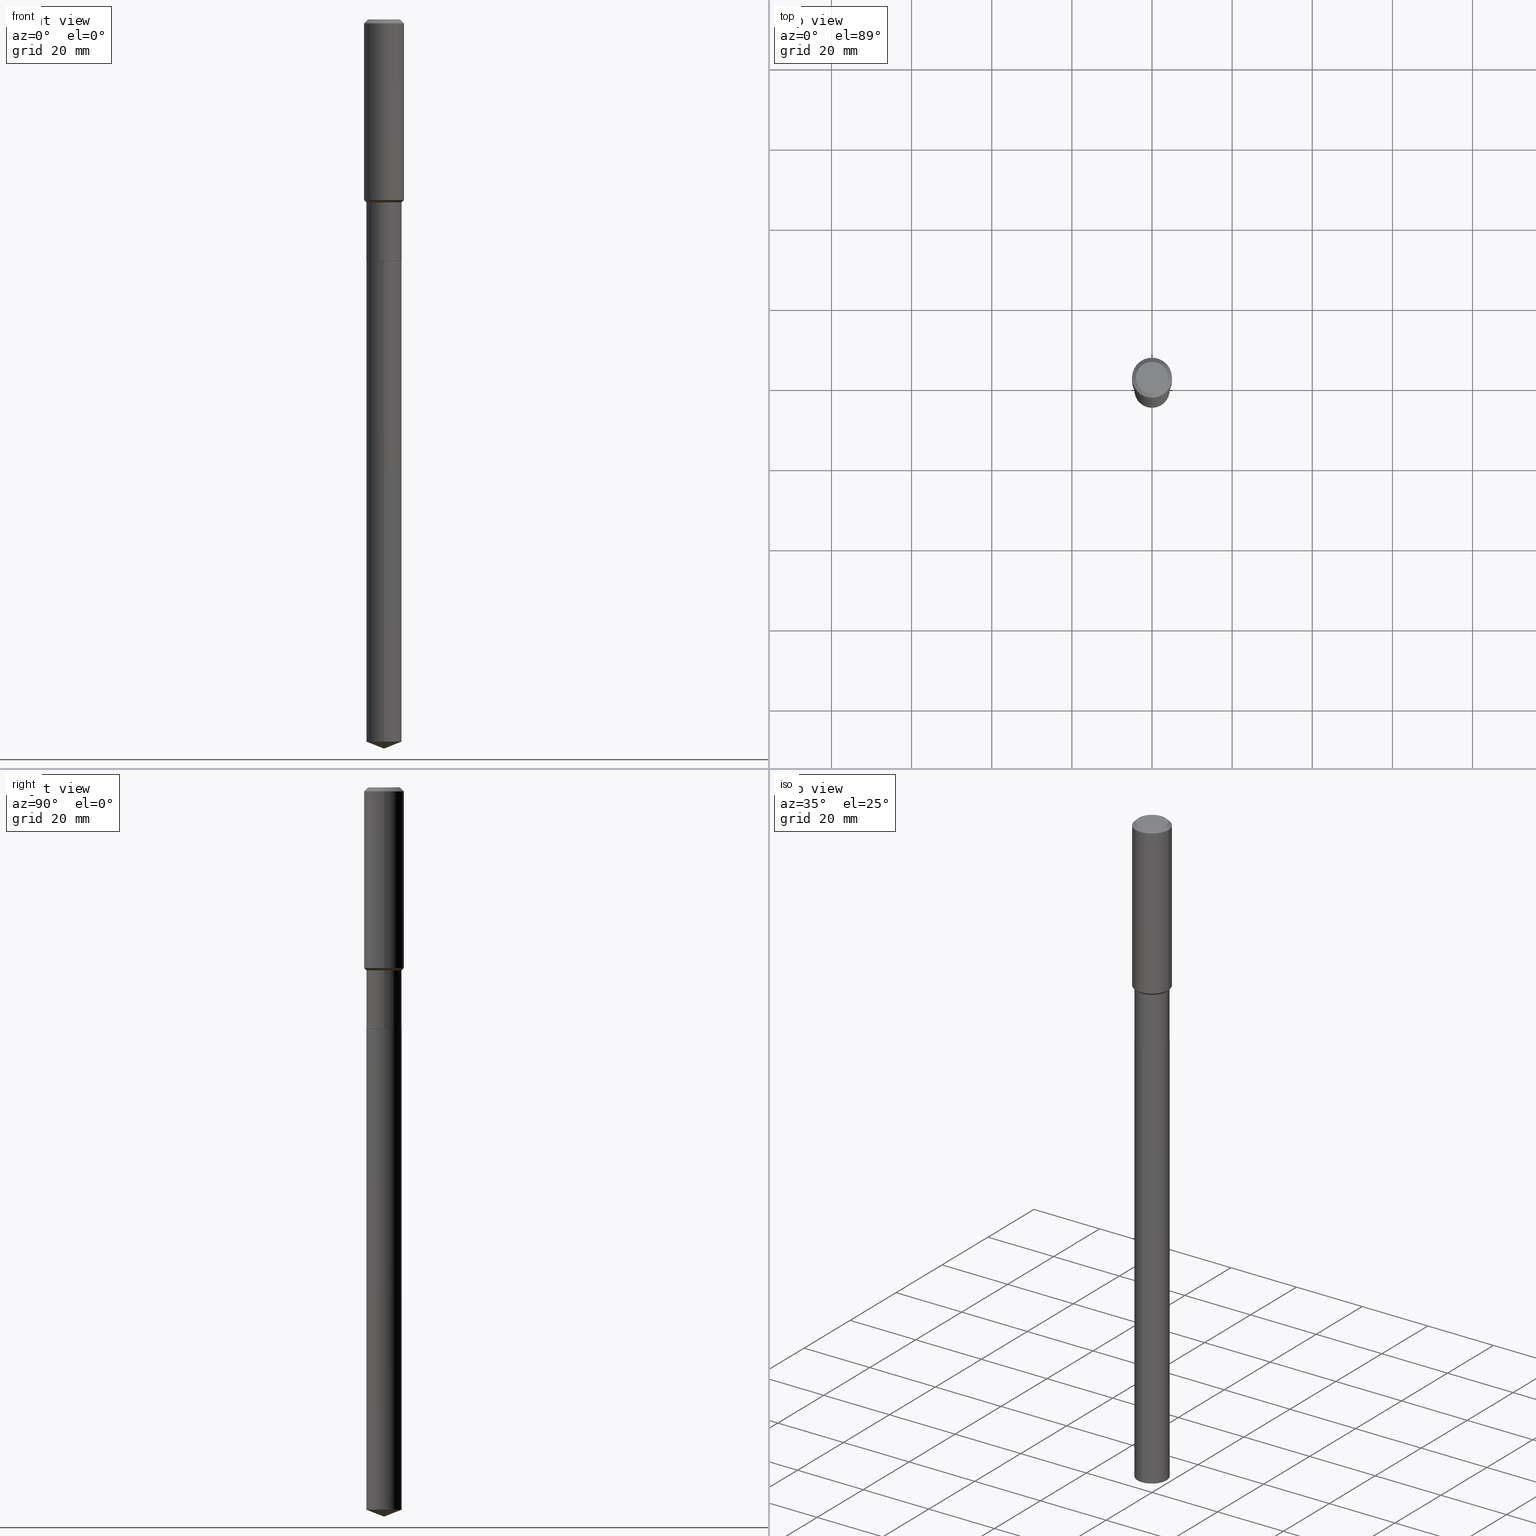
[diagram: canonical four-view strip — front | top / right | iso, engineering-drawing reading convention]
A machine part, canonical four-view strip (front | top / right | iso — engineering-drawing reading convention). The complete STEP part file that produces these views, byte-faithful:
ISO-10303-21;
HEADER;
FILE_DESCRIPTION (( 'STEP AP203' ),
    '1' );
FILE_NAME ('66767.STEP',
    '2024-04-25T05:42:07',
    ( '' ),
    ( '' ),
    'SwSTEP 2.0',
    'SolidWorks 2023',
    '' );
FILE_SCHEMA (( 'CONFIG_CONTROL_DESIGN' ));
ENDSEC;

DATA;
#1 = PERSON_AND_ORGANIZATION_ROLE ( 'design_supplier' ) ;
#2 = PERSON_AND_ORGANIZATION ( #8, #468 ) ;
#3 = AXIS2_PLACEMENT_3D ( 'NONE', #109, #450, #481 ) ;
#4 = EDGE_CURVE ( 'NONE', #108, #359, #438, .T. ) ;
#5 = PERSON_AND_ORGANIZATION ( #8, #468 ) ;
#6 = CARTESIAN_POINT ( 'NONE',  ( -1.209798283909087576E-15, -0.1732500000000082585, -2.369699999999999029 ) ) ;
#7 = DIRECTION ( 'NONE',  ( 0.000000000000000000, 0.000000000000000000, 1.000000000000000000 ) ) ;
#8 = PERSON ( 'UNSPECIFIED', 'UNSPECIFIED', 'UNSPECIFIED', ('UNSPECIFIED'), ('UNSPECIFIED'), ('UNSPECIFIED') ) ;
#9 = ORIENTED_EDGE ( 'NONE', *, *, #451, .F. ) ;
#10 = COORDINATED_UNIVERSAL_TIME_OFFSET ( 5, 0, .BEHIND. ) ;
#11 = EDGE_CURVE ( 'NONE', #359, #108, #33, .T. ) ;
#12 = ORIENTED_EDGE ( 'NONE', *, *, #120, .F. ) ;
#13 = ORIENTED_EDGE ( 'NONE', *, *, #19, .T. ) ;
#14 = DIRECTION ( 'NONE',  ( 1.000000000000000000, -6.982962677686267499E-15, 0.000000000000000000 ) ) ;
#15 = DIRECTION ( 'NONE',  ( -2.445443168198944148E-29, 3.491518053898597077E-15, 1.000000000000000000 ) ) ;
#16 = FACE_OUTER_BOUND ( 'NONE', #393, .T. ) ;
#17 = CONICAL_SURFACE ( 'NONE', #350, 0.1732499999999999318, 0.7853981633974490562 ) ;
#18 = VERTEX_POINT ( 'NONE', #145 ) ;
#19 = EDGE_CURVE ( 'NONE', #487, #446, #98, .T. ) ;
#20 = CARTESIAN_POINT ( 'NONE',  ( 0.000000000000000000, 0.000000000000000000, 0.000000000000000000 ) ) ;
#21 = DIRECTION ( 'NONE',  ( -2.445443168198944148E-29, 3.491518053898597077E-15, 1.000000000000000000 ) ) ;
#22 = ORIENTED_EDGE ( 'NONE', *, *, #236, .F. ) ;
#23 = DIRECTION ( 'NONE',  ( -2.445468806185136597E-29, 3.491481338843145583E-15, 1.000000000000000000 ) ) ;
#24 = ORIENTED_EDGE ( 'NONE', *, *, #199, .T. ) ;
#25 = CARTESIAN_POINT ( 'NONE',  ( 0.000000000000000000, 0.000000000000000000, 0.000000000000000000 ) ) ;
#26 = EDGE_CURVE ( 'NONE', #70, #85, #467, .T. ) ;
#27 = VECTOR ( 'NONE', #253, 39.37007874015748143 ) ;
#28 = ORIENTED_EDGE ( 'NONE', *, *, #141, .T. ) ;
#29 = DIRECTION ( 'NONE',  ( 1.000000000000000000, -6.982962677686261189E-15, 0.000000000000000000 ) ) ;
#30 = CARTESIAN_POINT ( 'NONE',  ( 9.627810689950948900E-31, -1.374596203102555561E-16, -0.03937000000000026589 ) ) ;
#31 = DIRECTION ( 'NONE',  ( -2.445468806185136597E-29, 3.491481338843145583E-15, 1.000000000000000000 ) ) ;
#32 = DIRECTION ( 'NONE',  ( 1.000000000000000000, -6.982962677686261189E-15, 0.000000000000000000 ) ) ;
#33 = CIRCLE ( 'NONE', #272, 0.1968500000000000250 ) ;
#34 = AXIS2_PLACEMENT_3D ( 'NONE', #466, #465, #100 ) ;
#35 = EDGE_CURVE ( 'NONE', #136, #359, #44, .T. ) ;
#36 = CALENDAR_DATE ( 2024, 25, 4 ) ;
#37 = ORIENTED_EDGE ( 'NONE', *, *, #413, .T. ) ;
#38 = DIRECTION ( 'NONE',  ( 6.982962677686265922E-15, 1.000000000000000000, -3.491518053898597472E-15 ) ) ;
#39 = AXIS2_PLACEMENT_3D ( 'NONE', #50, #91, #88 ) ;
#40 = AXIS2_PLACEMENT_3D ( 'NONE', #340, #449, #32 ) ;
#41 = FACE_OUTER_BOUND ( 'NONE', #405, .T. ) ;
#42 = PERSON_AND_ORGANIZATION_ROLE ( 'classification_officer' ) ;
#43 = CARTESIAN_POINT ( 'NONE',  ( 0.1732499999999999596, -1.209798283909145558E-15, 8.447976264066457276E-30 ) ) ;
#44 = LINE ( 'NONE', #83, #258 ) ;
#45 = ORIENTED_EDGE ( 'NONE', *, *, #164, .T. ) ;
#46 = AXIS2_PLACEMENT_3D ( 'NONE', #105, #409, #68 ) ;
#47 = EDGE_CURVE ( 'NONE', #490, #108, #210, .T. ) ;
#48 = AXIS2_PLACEMENT_3D ( 'NONE', #361, #407, #64 ) ;
#49 = CIRCLE ( 'NONE', #358, 0.1732499999999999873 ) ;
#50 = CARTESIAN_POINT ( 'NONE',  ( 5.793804695613824490E-29, -8.272017587987179099E-15, -2.369199999999999751 ) ) ;
#51 = ORIENTED_EDGE ( 'NONE', *, *, #120, .T. ) ;
#52 = DIRECTION ( 'NONE',  ( -2.445443168198944148E-29, 3.491518053898597077E-15, 1.000000000000000000 ) ) ;
#53 = DIRECTION ( 'NONE',  ( 1.000000000000000000, -6.982962677686261189E-15, 0.000000000000000000 ) ) ;
#54 = ORIENTED_EDGE ( 'NONE', *, *, #212, .T. ) ;
#55 = FACE_OUTER_BOUND ( 'NONE', #159, .T. ) ;
#56 = EDGE_CURVE ( 'NONE', #150, #457, #86, .T. ) ;
#57 = FACE_OUTER_BOUND ( 'NONE', #420, .T. ) ;
#58 = ORIENTED_EDGE ( 'NONE', *, *, #463, .F. ) ;
#59 = FACE_OUTER_BOUND ( 'NONE', #354, .T. ) ;
#60 = VECTOR ( 'NONE', #158, 39.37007874015748143 ) ;
#61 = VERTEX_POINT ( 'NONE', #243 ) ;
#62 = DIRECTION ( 'NONE',  ( -2.445468806185136597E-29, 3.491481338843145583E-15, 1.000000000000000000 ) ) ;
#63 = ORIENTED_EDGE ( 'NONE', *, *, #35, .T. ) ;
#64 = DIRECTION ( 'NONE',  ( -6.982962677686266711E-15, -1.000000000000000000, 6.307296955069006705E-15 ) ) ;
#65 = LINE ( 'NONE', #462, #218 ) ;
#66 =( NAMED_UNIT ( * ) PLANE_ANGLE_UNIT ( ) SI_UNIT ( $, .RADIAN. ) );
#67 = CLOSED_SHELL ( 'NONE', ( #377, #156, #249, #287, #229, #417, #269, #182, #422, #456, #127, #224 ) ) ;
#68 = DIRECTION ( 'NONE',  ( 1.000000000000000000, -6.982962677686265922E-15, 0.000000000000000000 ) ) ;
#69 = CARTESIAN_POINT ( 'NONE',  ( 5.795027430016917291E-29, -8.273763328656601391E-15, -2.369699999999999473 ) ) ;
#70 = VERTEX_POINT ( 'NONE', #200 ) ;
#71 = PRODUCT_DEFINITION ( 'UNKNOWN', '', #440, #172 ) ;
#72 = LINE ( 'NONE', #414, #485 ) ;
#73 = AXIS2_PLACEMENT_3D ( 'NONE', #279, #390, #38 ) ;
#74 = CARTESIAN_POINT ( 'NONE',  ( 0.1732499999999999318, -7.487481731149119896E-15, -1.797999999999999821 ) ) ;
#75 = ORIENTED_EDGE ( 'NONE', *, *, #26, .T. ) ;
#76 = ADVANCED_FACE ( 'NONE', ( #203 ), #369, .T. ) ;
#77 = PERSON_AND_ORGANIZATION ( #8, #468 ) ;
#78 = EDGE_LOOP ( 'NONE', ( #294, #171 ) ) ;
#79 = AXIS2_PLACEMENT_3D ( 'NONE', #20, #23, #132 ) ;
#80 = PERSON_AND_ORGANIZATION ( #8, #468 ) ;
#81 = DATE_TIME_ROLE ( 'creation_date' ) ;
#82 = CARTESIAN_POINT ( 'NONE',  ( 0.000000000000000000, 0.000000000000000000, 0.000000000000000000 ) ) ;
#83 = CARTESIAN_POINT ( 'NONE',  ( 0.1968500000000000250, -1.487948651171581601E-15, -0.03937000000000026589 ) ) ;
#84 = CC_DESIGN_PERSON_AND_ORGANIZATION_ASSIGNMENT ( #122, #1, ( #440 ) ) ;
#85 = VERTEX_POINT ( 'NONE', #166 ) ;
#86 = CIRCLE ( 'NONE', #39, 0.1732499999999999873 ) ;
#87 = CARTESIAN_POINT ( 'NONE',  ( 1.752160030014543344E-28, -2.501672685618344629E-14, -7.165000000000000036 ) ) ;
#88 = DIRECTION ( 'NONE',  ( 1.000000000000000000, -6.982962677686265133E-15, 0.000000000000000000 ) ) ;
#89 = EDGE_CURVE ( 'NONE', #362, #108, #333, .T. ) ;
#90 = DIRECTION ( 'NONE',  ( 0.7071067811866199593, -2.468850131083015945E-15, 0.7071067811864750752 ) ) ;
#91 = DIRECTION ( 'NONE',  ( -2.445468806185136597E-29, 3.491481338843145583E-15, 1.000000000000000000 ) ) ;
#92 = ORIENTED_EDGE ( 'NONE', *, *, #371, .F. ) ;
#93 = LINE ( 'NONE', #96, #27 ) ;
#94 = FACE_OUTER_BOUND ( 'NONE', #78, .T. ) ;
#95 = ORIENTED_EDGE ( 'NONE', *, *, #35, .F. ) ;
#96 = CARTESIAN_POINT ( 'NONE',  ( -1.209798283909087576E-15, -0.1732500000000082585, -2.369699999999999029 ) ) ;
#97 = AXIS2_PLACEMENT_3D ( 'NONE', #133, #289, #435 ) ;
#98 = CIRCLE ( 'NONE', #484, 0.1732499999999999318 ) ;
#99 = APPROVAL_PERSON_ORGANIZATION ( #77, #473, #421 ) ;
#100 = DIRECTION ( 'NONE',  ( 1.000000000000000000, -6.982962677686261189E-15, 0.000000000000000000 ) ) ;
#101 = CARTESIAN_POINT ( 'NONE',  ( -0.1732499999999999873, -6.043835227909203138E-15, -2.369199999999999751 ) ) ;
#102 = DIRECTION ( 'NONE',  ( -2.445468806185136597E-29, 3.491481338843145583E-15, 1.000000000000000000 ) ) ;
#103 = CARTESIAN_POINT ( 'NONE',  ( 0.1968500000000002192, -7.569880690745819598E-15, -1.774399999999999533 ) ) ;
#104 = VECTOR ( 'NONE', #303, 39.37007874015748854 ) ;
#105 = CARTESIAN_POINT ( 'NONE',  ( 9.627810689950948900E-31, -1.374596203102555561E-16, -0.03937000000000026589 ) ) ;
#106 = DIRECTION ( 'NONE',  ( 1.000000000000000000, -6.982962677686265922E-15, 0.000000000000000000 ) ) ;
#107 = ADVANCED_FACE ( 'NONE', ( #57 ), #206, .T. ) ;
#108 = VERTEX_POINT ( 'NONE', #471 ) ;
#109 = CARTESIAN_POINT ( 'NONE',  ( 4.396952913520875005E-29, -6.277683447239975324E-15, -1.797999999999999821 ) ) ;
#110 = DIRECTION ( 'NONE',  ( 1.000000000000000000, -6.982962677686267499E-15, 4.876176775795935793E-29 ) ) ;
#111 = CONICAL_SURFACE ( 'NONE', #152, 0.1732499999999999318, 0.7853981633974490562 ) ;
#112 = SHAPE_DEFINITION_REPRESENTATION ( #304, #415 ) ;
#113 = ORIENTED_EDGE ( 'NONE', *, *, #394, .T. ) ;
#114 = CALENDAR_DATE ( 2024, 25, 4 ) ;
#115 = CARTESIAN_POINT ( 'NONE',  ( 0.1732499999999999873, -9.481815871896324459E-15, -2.369199999999999751 ) ) ;
#116 = DIRECTION ( 'NONE',  ( 1.000000000000000000, 0.000000000000000000, 0.000000000000000000 ) ) ;
#117 = AXIS2_PLACEMENT_3D ( 'NONE', #25, #245, #125 ) ;
#118 = DATE_AND_TIME ( #114, #478 ) ;
#119 = LINE ( 'NONE', #213, #252 ) ;
#120 = EDGE_CURVE ( 'NONE', #136, #490, #168, .T. ) ;
#121 = ORIENTED_EDGE ( 'NONE', *, *, #4, .T. ) ;
#122 = PERSON_AND_ORGANIZATION ( #8, #468 ) ;
#123 = DIRECTION ( 'NONE',  ( -2.445468806185136877E-29, 3.491481338843145188E-15, 1.000000000000000000 ) ) ;
#124 = ORIENTED_EDGE ( 'NONE', *, *, #219, .T. ) ;
#125 = DIRECTION ( 'NONE',  ( 1.000000000000000000, -6.982962677686267499E-15, 4.876176775795935793E-29 ) ) ;
#126 = APPLICATION_CONTEXT ( 'configuration controlled 3d designs of mechanical parts and assemblies' ) ;
#127 = ADVANCED_FACE ( 'NONE', ( #94 ), #250, .F. ) ;
#128 = AXIS2_PLACEMENT_3D ( 'NONE', #364, #21, #331 ) ;
#129 = DIRECTION ( 'NONE',  ( -2.445468806185136597E-29, 3.491481338843145583E-15, 1.000000000000000000 ) ) ;
#130 = CC_DESIGN_SECURITY_CLASSIFICATION ( #336, ( #440 ) ) ;
#131 = CARTESIAN_POINT ( 'NONE',  ( 5.795027430016917291E-29, -8.273763328656601391E-15, -2.369699999999999473 ) ) ;
#132 = DIRECTION ( 'NONE',  ( 1.000000000000000000, -6.982962677686266711E-15, 4.876176775795935793E-29 ) ) ;
#133 = CARTESIAN_POINT ( 'NONE',  ( -9.427742298522567634E-47, 1.346031739168368355E-32, 3.855188123715870730E-18 ) ) ;
#134 = VERTEX_POINT ( 'NONE', #103 ) ;
#135 = LINE ( 'NONE', #169, #391 ) ;
#136 = VERTEX_POINT ( 'NONE', #270 ) ;
#137 = CARTESIAN_POINT ( 'NONE',  ( -0.1727499999999999869, -7.046300752631027821E-15, -2.369699999999999473 ) ) ;
#138 = CIRCLE ( 'NONE', #342, 0.1968500000000002192 ) ;
#139 = MANIFOLD_SOLID_BREP ( 'Body-Move/Copy2[1]', #185 ) ;
#140 = AXIS2_PLACEMENT_3D ( 'NONE', #418, #262, #110 ) ;
#141 = EDGE_CURVE ( 'NONE', #134, #359, #65, .T. ) ;
#142 = DIRECTION ( 'NONE',  ( -2.445468806185136597E-29, 3.491481338843145583E-15, 1.000000000000000000 ) ) ;
#143 = EDGE_LOOP ( 'NONE', ( #58, #24, #92 ) ) ;
#144 = CARTESIAN_POINT ( 'NONE',  ( -0.1732499999999999318, -6.043835227909203927E-15, -1.797999999999999821 ) ) ;
#145 = CARTESIAN_POINT ( 'NONE',  ( 1.231015289704546834E-15, 0.1732499999999751739, -7.096755010099712102 ) ) ;
#146 = ADVANCED_FACE ( 'NONE', ( #41 ), #233, .F. ) ;
#147 = AXIS2_PLACEMENT_3D ( 'NONE', #379, #308, #345 ) ;
#148 = FACE_OUTER_BOUND ( 'NONE', #274, .T. ) ;
#149 = DIRECTION ( 'NONE',  ( 1.000000000000000000, -6.982962677686265133E-15, 0.000000000000000000 ) ) ;
#150 = VERTEX_POINT ( 'NONE', #115 ) ;
#151 = CALENDAR_DATE ( 2024, 25, 4 ) ;
#152 = AXIS2_PLACEMENT_3D ( 'NONE', #322, #62, #14 ) ;
#153 = ORIENTED_EDGE ( 'NONE', *, *, #11, .T. ) ;
#154 = ORIENTED_EDGE ( 'NONE', *, *, #199, .F. ) ;
#155 = APPROVAL_DATE_TIME ( #271, #365 ) ;
#156 = ADVANCED_FACE ( 'NONE', ( #227 ), #356, .T. ) ;
#157 = COORDINATED_UNIVERSAL_TIME_OFFSET ( 5, 0, .BEHIND. ) ;
#158 = DIRECTION ( 'NONE',  ( -2.445468806185136877E-29, 3.491481338843145188E-15, 1.000000000000000000 ) ) ;
#159 = EDGE_LOOP ( 'NONE', ( #226, #251, #240, #479 ) ) ;
#160 = LOCAL_TIME ( 1, 42, 7.000000000000000000, #187 ) ;
#161 = APPROVAL_ROLE ( '' ) ;
#162 = CONICAL_SURFACE ( 'NONE', #343, 0.1968500000000000250, 0.7853981633974450594 ) ;
#163 = VERTEX_POINT ( 'NONE', #6 ) ;
#164 = EDGE_CURVE ( 'NONE', #150, #446, #195, .T. ) ;
#165 = FACE_OUTER_BOUND ( 'NONE', #175, .T. ) ;
#166 = CARTESIAN_POINT ( 'NONE',  ( 0.1727499999999999869, -9.480070131226902167E-15, -2.369699999999999473 ) ) ;
#167 = PRODUCT_RELATED_PRODUCT_CATEGORY ( 'detail', '', ( #260 ) ) ;
#168 = CIRCLE ( 'NONE', #97, 0.1574800000000000089 ) ;
#169 = CARTESIAN_POINT ( 'NONE',  ( 0.1727499999999999869, -9.480070131226902167E-15, -2.369699999999999473 ) ) ;
#170 =( GEOMETRIC_REPRESENTATION_CONTEXT ( 3 ) GLOBAL_UNCERTAINTY_ASSIGNED_CONTEXT ( ( #291 ) ) GLOBAL_UNIT_ASSIGNED_CONTEXT ( ( #381, #66, #278 ) ) REPRESENTATION_CONTEXT ( 'NONE', 'WORKASPACE' ) );
#171 = ORIENTED_EDGE ( 'NONE', *, *, #26, .F. ) ;
#172 = DESIGN_CONTEXT ( 'detailed design', #126, 'design' ) ;
#173 = CARTESIAN_POINT ( 'NONE',  ( 4.339239849694905201E-29, -6.195284487643276412E-15, -1.774399999999999533 ) ) ;
#174 = CARTESIAN_POINT ( 'NONE',  ( 5.795027430016917291E-29, -8.273763328656601391E-15, -2.369699999999999473 ) ) ;
#175 = EDGE_LOOP ( 'NONE', ( #113, #54, #455, #431 ) ) ;
#176 = EDGE_CURVE ( 'NONE', #457, #487, #119, .T. ) ;
#177 = CARTESIAN_POINT ( 'NONE',  ( -7.875562903209129078E-28, 1.124447008521526399E-13, 32.20507874015748229 ) ) ;
#178 = CARTESIAN_POINT ( 'NONE',  ( 9.627810689950948900E-31, -1.374596203102555561E-16, -0.03937000000000026589 ) ) ;
#179 = VECTOR ( 'NONE', #288, 39.37007874015748143 ) ;
#180 = AXIS2_PLACEMENT_3D ( 'NONE', #264, #31, #106 ) ;
#181 = DIRECTION ( 'NONE',  ( 2.445468806185136597E-29, -3.491481338843145583E-15, -1.000000000000000000 ) ) ;
#182 = ADVANCED_FACE ( 'NONE', ( #59 ), #209, .T. ) ;
#183 = FACE_OUTER_BOUND ( 'NONE', #204, .T. ) ;
#184 = DIRECTION ( 'NONE',  ( -2.445443168198944148E-29, 3.491518053898597077E-15, 1.000000000000000000 ) ) ;
#185 = CLOSED_SHELL ( 'NONE', ( #107, #406, #310, #76, #146 ) ) ;
#186 = CYLINDRICAL_SURFACE ( 'NONE', #140, 0.1732499999999999596 ) ;
#187 = COORDINATED_UNIVERSAL_TIME_OFFSET ( 5, 0, .BEHIND. ) ;
#188 = ORIENTED_EDGE ( 'NONE', *, *, #320, .T. ) ;
#189 = CONICAL_SURFACE ( 'NONE', #239, 99.94676754583923639, 1.195550537616117071 ) ;
#190 = CIRCLE ( 'NONE', #180, 0.1968500000000002192 ) ;
#191 = CARTESIAN_POINT ( 'NONE',  ( 9.627810689950948900E-31, -1.374596203102555561E-16, -0.03937000000000026589 ) ) ;
#192 = EDGE_CURVE ( 'NONE', #134, #362, #138, .T. ) ;
#193 = APPROVAL_ROLE ( '' ) ;
#194 = PERSON_AND_ORGANIZATION_ROLE ( 'creator' ) ;
#195 = LINE ( 'NONE', #43, #60 ) ;
#196 = VECTOR ( 'NONE', #202, 39.37007874015748854 ) ;
#197 = ORIENTED_EDGE ( 'NONE', *, *, #19, .F. ) ;
#198 = CC_DESIGN_APPROVAL ( #365, ( #440 ) ) ;
#199 = EDGE_CURVE ( 'NONE', #234, #290, #476, .T. ) ;
#200 = CARTESIAN_POINT ( 'NONE',  ( -0.1727499999999999869, -7.043651525456917409E-15, -2.369699999999999473 ) ) ;
#201 = ORIENTED_EDGE ( 'NONE', *, *, #11, .F. ) ;
#202 = DIRECTION ( 'NONE',  ( -0.7071067811865480168, 7.493145998870355738E-15, 0.7071067811865469066 ) ) ;
#203 = FACE_OUTER_BOUND ( 'NONE', #436, .T. ) ;
#204 = EDGE_LOOP ( 'NONE', ( #37, #51 ) ) ;
#205 = DIRECTION ( 'NONE',  ( -2.445443168198944148E-29, 3.491518053898597077E-15, 1.000000000000000000 ) ) ;
#206 = CYLINDRICAL_SURFACE ( 'NONE', #128, 0.1732499999999999873 ) ;
#207 = ORIENTED_EDGE ( 'NONE', *, *, #347, .T. ) ;
#208 = VECTOR ( 'NONE', #368, 39.37007874015748143 ) ;
#209 = CYLINDRICAL_SURFACE ( 'NONE', #281, 0.1968500000000001082 ) ;
#210 = LINE ( 'NONE', #392, #222 ) ;
#211 = ORIENTED_EDGE ( 'NONE', *, *, #298, .T. ) ;
#212 = EDGE_CURVE ( 'NONE', #487, #362, #332, .T. ) ;
#213 = CARTESIAN_POINT ( 'NONE',  ( -0.1732499999999999596, 1.231015289704373285E-15, -8.522055043866622021E-30 ) ) ;
#214 = ORIENTED_EDGE ( 'NONE', *, *, #236, .T. ) ;
#215 = CC_DESIGN_PERSON_AND_ORGANIZATION_ASSIGNMENT ( #80, #384, ( #440 ) ) ;
#216 = CARTESIAN_POINT ( 'NONE',  ( 1.752160030014543344E-28, -2.501672685618344629E-14, -7.165000000000000036 ) ) ;
#217 = CARTESIAN_POINT ( 'NONE',  ( -0.1574800000000000089, 1.168406772637159618E-15, 3.855188123707939751E-18 ) ) ;
#218 = VECTOR ( 'NONE', #123, 39.37007874015748143 ) ;
#219 = EDGE_CURVE ( 'NONE', #18, #61, #432, .T. ) ;
#220 = FACE_OUTER_BOUND ( 'NONE', #373, .T. ) ;
#221 = CARTESIAN_POINT ( 'NONE',  ( 0.1968500000000000250, -1.512055823412797189E-15, -0.03937000000000026589 ) ) ;
#222 = VECTOR ( 'NONE', #430, 39.37007874015748143 ) ;
#223 = CONICAL_SURFACE ( 'NONE', #296, 0.1727499999999999869, 0.7853981633975507526 ) ;
#224 = ADVANCED_FACE ( 'NONE', ( #397 ), #366, .T. ) ;
#225 = CARTESIAN_POINT ( 'NONE',  ( -9.427742298522567634E-47, 1.346031739168368355E-32, 3.855188123715870730E-18 ) ) ;
#226 = ORIENTED_EDGE ( 'NONE', *, *, #56, .T. ) ;
#227 = FACE_OUTER_BOUND ( 'NONE', #367, .T. ) ;
#228 = DATE_AND_TIME ( #151, #160 ) ;
#229 = ADVANCED_FACE ( 'NONE', ( #55 ), #363, .T. ) ;
#230 = CIRCLE ( 'NONE', #147, 0.1732499999999999873 ) ;
#231 = CC_DESIGN_APPROVAL ( #267, ( #336 ) ) ;
#232 = DATE_AND_TIME ( #237, #328 ) ;
#233 = PLANE ( 'NONE',  #73 ) ;
#234 = VERTEX_POINT ( 'NONE', #87 ) ;
#235 = SECURITY_CLASSIFICATION_LEVEL ( 'unclassified' ) ;
#236 = EDGE_CURVE ( 'NONE', #163, #61, #459, .T. ) ;
#237 = CALENDAR_DATE ( 2024, 25, 4 ) ;
#238 = DIRECTION ( 'NONE',  ( 0.7071067811865452413, -7.319954787623248157E-15, -0.7071067811865497932 ) ) ;
#239 = AXIS2_PLACEMENT_3D ( 'NONE', #177, #205, #437 ) ;
#240 = ORIENTED_EDGE ( 'NONE', *, *, #394, .F. ) ;
#241 = CC_DESIGN_PERSON_AND_ORGANIZATION_ASSIGNMENT ( #268, #42, ( #336 ) ) ;
#242 = CARTESIAN_POINT ( 'NONE',  ( 5.795027430016917291E-29, -8.273763328656601391E-15, -2.369699999999999473 ) ) ;
#243 = CARTESIAN_POINT ( 'NONE',  ( 1.231015289704547623E-15, 0.1732499999999917162, -2.369699999999999918 ) ) ;
#244 = ORIENTED_EDGE ( 'NONE', *, *, #463, .T. ) ;
#245 = DIRECTION ( 'NONE',  ( -2.445468806185136597E-29, 3.491481338843145583E-15, 1.000000000000000000 ) ) ;
#246 = CARTESIAN_POINT ( 'NONE',  ( -0.1968500000000001082, 1.398703375343757985E-15, -9.682923725166787881E-30 ) ) ;
#247 = ORIENTED_EDGE ( 'NONE', *, *, #298, .F. ) ;
#248 = FACE_OUTER_BOUND ( 'NONE', #396, .T. ) ;
#249 = ADVANCED_FACE ( 'NONE', ( #16 ), #474, .T. ) ;
#250 = PLANE ( 'NONE',  #380 ) ;
#251 = ORIENTED_EDGE ( 'NONE', *, *, #176, .T. ) ;
#252 = VECTOR ( 'NONE', #403, 39.37007874015748143 ) ;
#253 = DIRECTION ( 'NONE',  ( -2.445443168198944148E-29, 3.491518053898597472E-15, 1.000000000000000000 ) ) ;
#254 = CARTESIAN_POINT ( 'NONE',  ( 1.231015289704431266E-15, 0.1732499999999917162, -2.369699999999999918 ) ) ;
#255 = ORIENTED_EDGE ( 'NONE', *, *, #89, .F. ) ;
#256 = EDGE_CURVE ( 'NONE', #290, #18, #265, .T. ) ;
#257 = FACE_OUTER_BOUND ( 'NONE', #378, .T. ) ;
#258 = VECTOR ( 'NONE', #238, 39.37007874015748143 ) ;
#259 = LOCAL_TIME ( 1, 42, 7.000000000000000000, #349 ) ;
#260 = PRODUCT ( '66767', '66767', '', ( #319 ) ) ;
#261 = DIRECTION ( 'NONE',  ( -2.445468806185136597E-29, 3.491481338843145583E-15, 1.000000000000000000 ) ) ;
#262 = DIRECTION ( 'NONE',  ( -2.445468806185136597E-29, 3.491481338843145583E-15, 1.000000000000000000 ) ) ;
#263 = ORIENTED_EDGE ( 'NONE', *, *, #212, .F. ) ;
#264 = CARTESIAN_POINT ( 'NONE',  ( 4.339239849694905201E-29, -6.195284487643276412E-15, -1.774399999999999533 ) ) ;
#265 = CIRCLE ( 'NONE', #48, 0.1732499999999999873 ) ;
#266 = APPROVAL_PERSON_ORGANIZATION ( #461, #267, #193 ) ;
#267 = APPROVAL ( #314, 'UNSPECIFIED' ) ;
#268 = PERSON_AND_ORGANIZATION ( #8, #468 ) ;
#269 = ADVANCED_FACE ( 'NONE', ( #248 ), #111, .T. ) ;
#270 = CARTESIAN_POINT ( 'NONE',  ( 0.1574800000000000089, -1.284169937930321189E-15, 3.855188123724205385E-18 ) ) ;
#271 = DATE_AND_TIME ( #36, #259 ) ;
#272 = AXIS2_PLACEMENT_3D ( 'NONE', #30, #339, #482 ) ;
#273 = AXIS2_PLACEMENT_3D ( 'NONE', #480, #338, #299 ) ;
#274 = EDGE_LOOP ( 'NONE', ( #154, #244, #443 ) ) ;
#275 = APPROVAL_DATE_TIME ( #315, #267 ) ;
#276 = DIRECTION ( 'NONE',  ( -2.438088387897960049E-29, 3.491481338843145188E-15, 1.000000000000000000 ) ) ;
#277 = ORIENTED_EDGE ( 'NONE', *, *, #413, .F. ) ;
#278 =( NAMED_UNIT ( * ) SI_UNIT ( $, .STERADIAN. ) SOLID_ANGLE_UNIT ( ) );
#279 = CARTESIAN_POINT ( 'NONE',  ( 5.795027430016917291E-29, -8.273763328656601391E-15, -2.369699999999999473 ) ) ;
#280 = DIRECTION ( 'NONE',  ( -2.445468806185136597E-29, 3.491481338843145583E-15, 1.000000000000000000 ) ) ;
#281 = AXIS2_PLACEMENT_3D ( 'NONE', #372, #292, #400 ) ;
#282 = ORIENTED_EDGE ( 'NONE', *, *, #327, .T. ) ;
#283 = LOCAL_TIME ( 1, 42, 7.000000000000000000, #157 ) ;
#284 = CARTESIAN_POINT ( 'NONE',  ( -1.209798283908971811E-15, -0.1732500000000247453, -7.096755010099710326 ) ) ;
#285 = DIRECTION ( 'NONE',  ( -2.445468806185136597E-29, 3.491481338843145583E-15, 1.000000000000000000 ) ) ;
#286 = ORIENTED_EDGE ( 'NONE', *, *, #371, .T. ) ;
#287 = ADVANCED_FACE ( 'NONE', ( #165 ), #17, .T. ) ;
#288 = DIRECTION ( 'NONE',  ( -0.7071067811866199593, 7.493145998870616062E-15, 0.7071067811864750752 ) ) ;
#289 = DIRECTION ( 'NONE',  ( -2.445468806185136597E-29, 3.491481338843145583E-15, 1.000000000000000000 ) ) ;
#290 = VERTEX_POINT ( 'NONE', #284 ) ;
#291 = UNCERTAINTY_MEASURE_WITH_UNIT (LENGTH_MEASURE( 1.000000000000000082E-05 ), #381, 'distance_accuracy_value', 'NONE');
#292 = DIRECTION ( 'NONE',  ( -2.445468806185136597E-29, 3.491481338843145583E-15, 1.000000000000000000 ) ) ;
#293 = DIRECTION ( 'NONE',  ( 1.000000000000000000, -6.982962677686265922E-15, 4.876176775795935793E-29 ) ) ;
#294 = ORIENTED_EDGE ( 'NONE', *, *, #444, .F. ) ;
#295 = VECTOR ( 'NONE', #398, 39.37007874015748143 ) ;
#296 = AXIS2_PLACEMENT_3D ( 'NONE', #69, #142, #29 ) ;
#297 = CARTESIAN_POINT ( 'NONE',  ( 4.396952913520875005E-29, -6.277683447239975324E-15, -1.797999999999999821 ) ) ;
#298 = EDGE_CURVE ( 'NONE', #85, #150, #135, .T. ) ;
#299 = DIRECTION ( 'NONE',  ( -1.000000000000000000, 6.982962677686265922E-15, -4.876176775795935793E-29 ) ) ;
#300 = ORIENTED_EDGE ( 'NONE', *, *, #219, .F. ) ;
#301 = CC_DESIGN_DATE_AND_TIME_ASSIGNMENT ( #118, #355, ( #336 ) ) ;
#302 = CARTESIAN_POINT ( 'NONE',  ( 4.396952913520875005E-29, -6.277683447239975324E-15, -1.797999999999999821 ) ) ;
#303 = DIRECTION ( 'NONE',  ( 0.7071067811865480168, -2.468850131082262583E-15, 0.7071067811865469066 ) ) ;
#304 = PRODUCT_DEFINITION_SHAPE ( 'NONE', 'NONE',  #71 ) ;
#305 = DIRECTION ( 'NONE',  ( 1.000000000000000000, -6.982962677686267499E-15, 0.000000000000000000 ) ) ;
#306 = DIRECTION ( 'NONE',  ( -6.982962677686268288E-15, -1.000000000000000000, 3.498627837350029860E-15 ) ) ;
#307 = CC_DESIGN_DATE_AND_TIME_ASSIGNMENT ( #232, #81, ( #71 ) ) ;
#308 = DIRECTION ( 'NONE',  ( -2.445443168198944148E-29, 3.491518053898597077E-15, 1.000000000000000000 ) ) ;
#309 = VECTOR ( 'NONE', #395, 39.37007874015748143 ) ;
#310 = ADVANCED_FACE ( 'NONE', ( #330 ), #189, .T. ) ;
#311 = EDGE_LOOP ( 'NONE', ( #348, #207, #45, #197 ) ) ;
#312 = PERSON_AND_ORGANIZATION ( #8, #468 ) ;
#313 = ORIENTED_EDGE ( 'NONE', *, *, #489, .T. ) ;
#314 = APPROVAL_STATUS ( 'not_yet_approved' ) ;
#315 = DATE_AND_TIME ( #452, #283 ) ;
#316 = DIRECTION ( 'NONE',  ( 2.445468806185136597E-29, -3.491481338843145583E-15, -1.000000000000000000 ) ) ;
#317 = CIRCLE ( 'NONE', #3, 0.1732499999999999318 ) ;
#318 = ORIENTED_EDGE ( 'NONE', *, *, #327, .F. ) ;
#319 = MECHANICAL_CONTEXT ( 'NONE', #404, 'mechanical' ) ;
#320 = EDGE_CURVE ( 'NONE', #70, #457, #470, .T. ) ;
#321 = ORIENTED_EDGE ( 'NONE', *, *, #256, .T. ) ;
#322 = CARTESIAN_POINT ( 'NONE',  ( 4.396952913520875005E-29, -6.277683447239975324E-15, -1.797999999999999821 ) ) ;
#323 = ORIENTED_EDGE ( 'NONE', *, *, #141, .F. ) ;
#324 = DIRECTION ( 'NONE',  ( 1.000000000000000000, -6.982962677686267499E-15, 0.000000000000000000 ) ) ;
#325 = AXIS2_PLACEMENT_3D ( 'NONE', #370, #441, #149 ) ;
#326 = ORIENTED_EDGE ( 'NONE', *, *, #444, .T. ) ;
#327 = EDGE_CURVE ( 'NONE', #290, #163, #93, .T. ) ;
#328 = LOCAL_TIME ( 1, 42, 7.000000000000000000, #10 ) ;
#329 = DIMENSIONAL_EXPONENTS ( 1.000000000000000000, 0.000000000000000000, 0.000000000000000000, 0.000000000000000000, 0.000000000000000000, 0.000000000000000000, 0.000000000000000000 ) ;
#330 = FACE_OUTER_BOUND ( 'NONE', #143, .T. ) ;
#331 = DIRECTION ( 'NONE',  ( -6.982962677686266711E-15, -1.000000000000000000, 3.153648477534503352E-15 ) ) ;
#332 = LINE ( 'NONE', #434, #196 ) ;
#333 = LINE ( 'NONE', #246, #295 ) ;
#334 = DIRECTION ( 'NONE',  ( 1.000000000000000000, -6.982962677686265922E-15, 0.000000000000000000 ) ) ;
#335 = AXIS2_PLACEMENT_3D ( 'NONE', #388, #15, #357 ) ;
#336 = SECURITY_CLASSIFICATION ( '', '', #235 ) ;
#337 = PLANE ( 'NONE',  #273 ) ;
#338 = DIRECTION ( 'NONE',  ( 2.438088387897960049E-29, -3.491481338843145188E-15, -1.000000000000000000 ) ) ;
#339 = DIRECTION ( 'NONE',  ( -2.445468806185136597E-29, 3.491481338843145583E-15, 1.000000000000000000 ) ) ;
#340 = CARTESIAN_POINT ( 'NONE',  ( 5.795027430016917291E-29, -8.273763328656601391E-15, -2.369699999999999473 ) ) ;
#341 = CARTESIAN_POINT ( 'NONE',  ( 5.795027430016917291E-29, -8.273763328656601391E-15, -2.369699999999999473 ) ) ;
#342 = AXIS2_PLACEMENT_3D ( 'NONE', #173, #280, #334 ) ;
#343 = AXIS2_PLACEMENT_3D ( 'NONE', #178, #181, #412 ) ;
#344 = ORIENTED_EDGE ( 'NONE', *, *, #347, .F. ) ;
#345 = DIRECTION ( 'NONE',  ( -6.982962677686266711E-15, -1.000000000000000000, 6.307296955069006705E-15 ) ) ;
#346 = APPROVAL_DATE_TIME ( #228, #473 ) ;
#347 = EDGE_CURVE ( 'NONE', #457, #150, #410, .T. ) ;
#348 = ORIENTED_EDGE ( 'NONE', *, *, #176, .F. ) ;
#349 = COORDINATED_UNIVERSAL_TIME_OFFSET ( 5, 0, .BEHIND. ) ;
#350 = AXIS2_PLACEMENT_3D ( 'NONE', #297, #129, #324 ) ;
#351 = AXIS2_PLACEMENT_3D ( 'NONE', #82, #7, #116 ) ;
#352 = PERSON_AND_ORGANIZATION_ROLE ( 'design_owner' ) ;
#353 = DIRECTION ( 'NONE',  ( -1.000000000000000000, 6.982962677686265922E-15, 0.000000000000000000 ) ) ;
#354 = EDGE_LOOP ( 'NONE', ( #255, #464, #28, #360 ) ) ;
#355 = DATE_TIME_ROLE ( 'classification_date' ) ;
#356 = CONICAL_SURFACE ( 'NONE', #374, 0.1968500000000000250, 0.7853981633974450594 ) ;
#357 = DIRECTION ( 'NONE',  ( -6.982962677686266711E-15, -1.000000000000000000, 3.153648477534503352E-15 ) ) ;
#358 = AXIS2_PLACEMENT_3D ( 'NONE', #341, #375, #416 ) ;
#359 = VERTEX_POINT ( 'NONE', #221 ) ;
#360 = ORIENTED_EDGE ( 'NONE', *, *, #4, .F. ) ;
#361 = CARTESIAN_POINT ( 'NONE',  ( 1.735477181016584818E-28, -2.477836123819155960E-14, -7.096755010099711214 ) ) ;
#362 = VERTEX_POINT ( 'NONE', #442 ) ;
#363 = CYLINDRICAL_SURFACE ( 'NONE', #117, 0.1732499999999999596 ) ;
#364 = CARTESIAN_POINT ( 'NONE',  ( 5.795027430016917291E-29, -8.273763328656601391E-15, -2.369699999999999473 ) ) ;
#365 = APPROVAL ( #458, 'UNSPECIFIED' ) ;
#366 = CONICAL_SURFACE ( 'NONE', #34, 0.1727499999999999869, 0.7853981633975507526 ) ;
#367 = EDGE_LOOP ( 'NONE', ( #12, #63, #153, #469 ) ) ;
#368 = DIRECTION ( 'NONE',  ( -6.497071151882113525E-15, -0.9304175679820235745, 0.3665012267242993560 ) ) ;
#369 = CYLINDRICAL_SURFACE ( 'NONE', #335, 0.1732499999999999873 ) ;
#370 = CARTESIAN_POINT ( 'NONE',  ( 5.793804695613824490E-29, -8.272017587987179099E-15, -2.369199999999999751 ) ) ;
#371 = EDGE_CURVE ( 'NONE', #18, #290, #230, .T. ) ;
#372 = CARTESIAN_POINT ( 'NONE',  ( 0.000000000000000000, 0.000000000000000000, 0.000000000000000000 ) ) ;
#373 = EDGE_LOOP ( 'NONE', ( #326, #188, #389, #247 ) ) ;
#374 = AXIS2_PLACEMENT_3D ( 'NONE', #191, #316, #353 ) ;
#375 = DIRECTION ( 'NONE',  ( -2.445443168198944148E-29, 3.491518053898597077E-15, 1.000000000000000000 ) ) ;
#376 = FACE_OUTER_BOUND ( 'NONE', #311, .T. ) ;
#377 = ADVANCED_FACE ( 'NONE', ( #220 ), #223, .T. ) ;
#378 = EDGE_LOOP ( 'NONE', ( #95, #277, #433, #121 ) ) ;
#379 = CARTESIAN_POINT ( 'NONE',  ( 1.735477181016584818E-28, -2.477836123819155960E-14, -7.096755010099711214 ) ) ;
#380 = AXIS2_PLACEMENT_3D ( 'NONE', #174, #276, #293 ) ;
#381 =( CONVERSION_BASED_UNIT ( 'INCH', #448 ) LENGTH_UNIT ( ) NAMED_UNIT ( #329 ) );
#382 = AXIS2_PLACEMENT_3D ( 'NONE', #225, #102, #383 ) ;
#383 = DIRECTION ( 'NONE',  ( 1.000000000000000000, -6.982962677686265922E-15, 4.876223630392693006E-29 ) ) ;
#384 = PERSON_AND_ORGANIZATION_ROLE ( 'creator' ) ;
#385 = CIRCLE ( 'NONE', #382, 0.1574800000000000089 ) ;
#386 = CC_DESIGN_PERSON_AND_ORGANIZATION_ASSIGNMENT ( #2, #194, ( #71 ) ) ;
#387 = COORDINATED_UNIVERSAL_TIME_OFFSET ( 5, 0, .BEHIND. ) ;
#388 = CARTESIAN_POINT ( 'NONE',  ( 5.795027430016917291E-29, -8.273763328656601391E-15, -2.369699999999999473 ) ) ;
#389 = ORIENTED_EDGE ( 'NONE', *, *, #56, .F. ) ;
#390 = DIRECTION ( 'NONE',  ( 2.445443168198943307E-29, -3.491518053898597472E-15, -1.000000000000000000 ) ) ;
#391 = VECTOR ( 'NONE', #90, 39.37007874015748143 ) ;
#392 = CARTESIAN_POINT ( 'NONE',  ( -0.1968500000000000250, 1.237136582792286225E-15, -0.03937000000000026589 ) ) ;
#393 = EDGE_LOOP ( 'NONE', ( #453, #475, #201, #323 ) ) ;
#394 = EDGE_CURVE ( 'NONE', #446, #487, #317, .T. ) ;
#395 = DIRECTION ( 'NONE',  ( -2.445443168198944148E-29, 3.491518053898597472E-15, 1.000000000000000000 ) ) ;
#396 = EDGE_LOOP ( 'NONE', ( #263, #13, #313, #401 ) ) ;
#397 = FACE_OUTER_BOUND ( 'NONE', #423, .T. ) ;
#398 = DIRECTION ( 'NONE',  ( -2.445468806185136877E-29, 3.491481338843145188E-15, 1.000000000000000000 ) ) ;
#399 = ORIENTED_EDGE ( 'NONE', *, *, #320, .F. ) ;
#400 = DIRECTION ( 'NONE',  ( 1.000000000000000000, -6.982962677686266711E-15, 4.876176775795935793E-29 ) ) ;
#401 = ORIENTED_EDGE ( 'NONE', *, *, #427, .F. ) ;
#402 = CONICAL_SURFACE ( 'NONE', #447, 99.94676754583923639, 1.195550537616117071 ) ;
#403 = DIRECTION ( 'NONE',  ( -2.445468806185136877E-29, 3.491481338843145188E-15, 1.000000000000000000 ) ) ;
#404 = APPLICATION_CONTEXT ( 'configuration controlled 3d designs of mechanical parts and assemblies' ) ;
#405 = EDGE_LOOP ( 'NONE', ( #214, #426 ) ) ;
#406 = ADVANCED_FACE ( 'NONE', ( #148 ), #402, .T. ) ;
#407 = DIRECTION ( 'NONE',  ( -2.445443168198944148E-29, 3.491518053898597077E-15, 1.000000000000000000 ) ) ;
#408 =( LENGTH_UNIT ( ) NAMED_UNIT ( * ) SI_UNIT ( $, .METRE. ) );
#409 = DIRECTION ( 'NONE',  ( -2.445468806185136597E-29, 3.491481338843145583E-15, 1.000000000000000000 ) ) ;
#410 = CIRCLE ( 'NONE', #325, 0.1732499999999999873 ) ;
#411 = CC_DESIGN_APPROVAL ( #473, ( #71 ) ) ;
#412 = DIRECTION ( 'NONE',  ( -1.000000000000000000, 6.982962677686265922E-15, 0.000000000000000000 ) ) ;
#413 = EDGE_CURVE ( 'NONE', #490, #136, #385, .T. ) ;
#414 = CARTESIAN_POINT ( 'NONE',  ( 1.752172287430481534E-28, -2.501655284884963973E-14, -7.165000000000000036 ) ) ;
#415 = ADVANCED_BREP_SHAPE_REPRESENTATION ( '66767', ( #139, #472, #351 ), #170 ) ;
#416 = DIRECTION ( 'NONE',  ( -6.982962677686266711E-15, -1.000000000000000000, 3.153648477534503352E-15 ) ) ;
#417 = ADVANCED_FACE ( 'NONE', ( #376 ), #186, .T. ) ;
#418 = CARTESIAN_POINT ( 'NONE',  ( 0.000000000000000000, 0.000000000000000000, 0.000000000000000000 ) ) ;
#419 = APPROVAL_PERSON_ORGANIZATION ( #5, #365, #161 ) ;
#420 = EDGE_LOOP ( 'NONE', ( #321, #124, #22, #318 ) ) ;
#421 = APPROVAL_ROLE ( '' ) ;
#422 = ADVANCED_FACE ( 'NONE', ( #257 ), #162, .T. ) ;
#423 = EDGE_LOOP ( 'NONE', ( #399, #75, #211, #344 ) ) ;
#424 = APPLICATION_PROTOCOL_DEFINITION ( 'international standard', 'config_control_design', 1994, #404 ) ;
#425 = APPROVAL_STATUS ( 'not_yet_approved' ) ;
#426 = ORIENTED_EDGE ( 'NONE', *, *, #451, .T. ) ;
#427 = EDGE_CURVE ( 'NONE', #362, #134, #190, .T. ) ;
#428 = DIRECTION ( 'NONE',  ( -6.982962677686266711E-15, -1.000000000000000000, 3.153648477534503352E-15 ) ) ;
#429 = AXIS2_PLACEMENT_3D ( 'NONE', #131, #285, #53 ) ;
#430 = DIRECTION ( 'NONE',  ( -0.7071067811865452413, 2.468850131082233000E-15, -0.7071067811865497932 ) ) ;
#431 = ORIENTED_EDGE ( 'NONE', *, *, #489, .F. ) ;
#432 = LINE ( 'NONE', #254, #309 ) ;
#433 = ORIENTED_EDGE ( 'NONE', *, *, #47, .T. ) ;
#434 = CARTESIAN_POINT ( 'NONE',  ( -0.1732499999999999318, -5.046668157535602434E-15, -1.797999999999999821 ) ) ;
#435 = DIRECTION ( 'NONE',  ( 1.000000000000000000, -6.982962677686265922E-15, 4.876223630392693006E-29 ) ) ;
#436 = EDGE_LOOP ( 'NONE', ( #300, #286, #282, #9 ) ) ;
#437 = DIRECTION ( 'NONE',  ( -6.982962677686268288E-15, -1.000000000000000000, 3.498627837350029860E-15 ) ) ;
#438 = CIRCLE ( 'NONE', #46, 0.1968500000000000250 ) ;
#439 = CC_DESIGN_PERSON_AND_ORGANIZATION_ASSIGNMENT ( #312, #352, ( #260 ) ) ;
#440 = PRODUCT_DEFINITION_FORMATION_WITH_SPECIFIED_SOURCE ( 'ANY', '', #260, .NOT_KNOWN. ) ;
#441 = DIRECTION ( 'NONE',  ( -2.445468806185136597E-29, 3.491481338843145583E-15, 1.000000000000000000 ) ) ;
#442 = CARTESIAN_POINT ( 'NONE',  ( -0.1968500000000002192, -4.796581112299517835E-15, -1.774399999999999533 ) ) ;
#443 = ORIENTED_EDGE ( 'NONE', *, *, #256, .F. ) ;
#444 = EDGE_CURVE ( 'NONE', #85, #70, #460, .T. ) ;
#445 = DIRECTION ( 'NONE',  ( 6.611014441532060278E-15, 0.9304175679820263500, 0.3665012267242928057 ) ) ;
#446 = VERTEX_POINT ( 'NONE', #74 ) ;
#447 = AXIS2_PLACEMENT_3D ( 'NONE', #488, #184, #306 ) ;
#448 = LENGTH_MEASURE_WITH_UNIT ( LENGTH_MEASURE( 0.02539999999999999897 ), #408 );
#449 = DIRECTION ( 'NONE',  ( -2.445468806185136597E-29, 3.491481338843145583E-15, 1.000000000000000000 ) ) ;
#450 = DIRECTION ( 'NONE',  ( -2.445468806185136597E-29, 3.491481338843145583E-15, 1.000000000000000000 ) ) ;
#451 = EDGE_CURVE ( 'NONE', #61, #163, #49, .T. ) ;
#452 = CALENDAR_DATE ( 2024, 25, 4 ) ;
#453 = ORIENTED_EDGE ( 'NONE', *, *, #192, .T. ) ;
#454 = APPLICATION_PROTOCOL_DEFINITION ( 'international standard', 'config_control_design', 1994, #126 ) ;
#455 = ORIENTED_EDGE ( 'NONE', *, *, #192, .F. ) ;
#456 = ADVANCED_FACE ( 'NONE', ( #183 ), #337, .F. ) ;
#457 = VERTEX_POINT ( 'NONE', #101 ) ;
#458 = APPROVAL_STATUS ( 'not_yet_approved' ) ;
#459 = CIRCLE ( 'NONE', #477, 0.1732499999999999873 ) ;
#460 = CIRCLE ( 'NONE', #40, 0.1727499999999999869 ) ;
#461 = PERSON_AND_ORGANIZATION ( #8, #468 ) ;
#462 = CARTESIAN_POINT ( 'NONE',  ( 0.1968500000000001082, -1.374596203102542397E-15, 9.598753983154305062E-30 ) ) ;
#463 = EDGE_CURVE ( 'NONE', #234, #18, #72, .T. ) ;
#464 = ORIENTED_EDGE ( 'NONE', *, *, #427, .T. ) ;
#465 = DIRECTION ( 'NONE',  ( -2.445468806185136597E-29, 3.491481338843145583E-15, 1.000000000000000000 ) ) ;
#466 = CARTESIAN_POINT ( 'NONE',  ( 5.795027430016917291E-29, -8.273763328656601391E-15, -2.369699999999999473 ) ) ;
#467 = CIRCLE ( 'NONE', #429, 0.1727499999999999869 ) ;
#468 = ORGANIZATION ( 'UNSPECIFIED', 'UNSPECIFIED', '' ) ;
#469 = ORIENTED_EDGE ( 'NONE', *, *, #47, .F. ) ;
#470 = LINE ( 'NONE', #137, #179 ) ;
#471 = CARTESIAN_POINT ( 'NONE',  ( -0.1968500000000000250, -1.767668678633007617E-15, -0.03937000000000026589 ) ) ;
#472 = MANIFOLD_SOLID_BREP ( 'Body-Move/Copy2[2]', #67 ) ;
#473 = APPROVAL ( #425, 'UNSPECIFIED' ) ;
#474 = CYLINDRICAL_SURFACE ( 'NONE', #79, 0.1968500000000001082 ) ;
#475 = ORIENTED_EDGE ( 'NONE', *, *, #89, .T. ) ;
#476 = LINE ( 'NONE', #216, #208 ) ;
#477 = AXIS2_PLACEMENT_3D ( 'NONE', #242, #52, #428 ) ;
#478 = LOCAL_TIME ( 1, 42, 7.000000000000000000, #387 ) ;
#479 = ORIENTED_EDGE ( 'NONE', *, *, #164, .F. ) ;
#480 = CARTESIAN_POINT ( 'NONE',  ( -4.713871149261283817E-47, 6.730158695841841775E-33, 1.927594061857935365E-18 ) ) ;
#481 = DIRECTION ( 'NONE',  ( 1.000000000000000000, -6.982962677686267499E-15, 0.000000000000000000 ) ) ;
#482 = DIRECTION ( 'NONE',  ( 1.000000000000000000, -6.982962677686265922E-15, 0.000000000000000000 ) ) ;
#483 = CARTESIAN_POINT ( 'NONE',  ( 0.1732499999999999318, -7.487481731149119896E-15, -1.797999999999999821 ) ) ;
#484 = AXIS2_PLACEMENT_3D ( 'NONE', #302, #261, #305 ) ;
#485 = VECTOR ( 'NONE', #445, 39.37007874015748143 ) ;
#486 = LINE ( 'NONE', #483, #104 ) ;
#487 = VERTEX_POINT ( 'NONE', #144 ) ;
#488 = CARTESIAN_POINT ( 'NONE',  ( -7.875562903209129078E-28, 1.124447008521526399E-13, 32.20507874015748229 ) ) ;
#489 = EDGE_CURVE ( 'NONE', #446, #134, #486, .T. ) ;
#490 = VERTEX_POINT ( 'NONE', #217 ) ;
ENDSEC;
END-ISO-10303-21;
